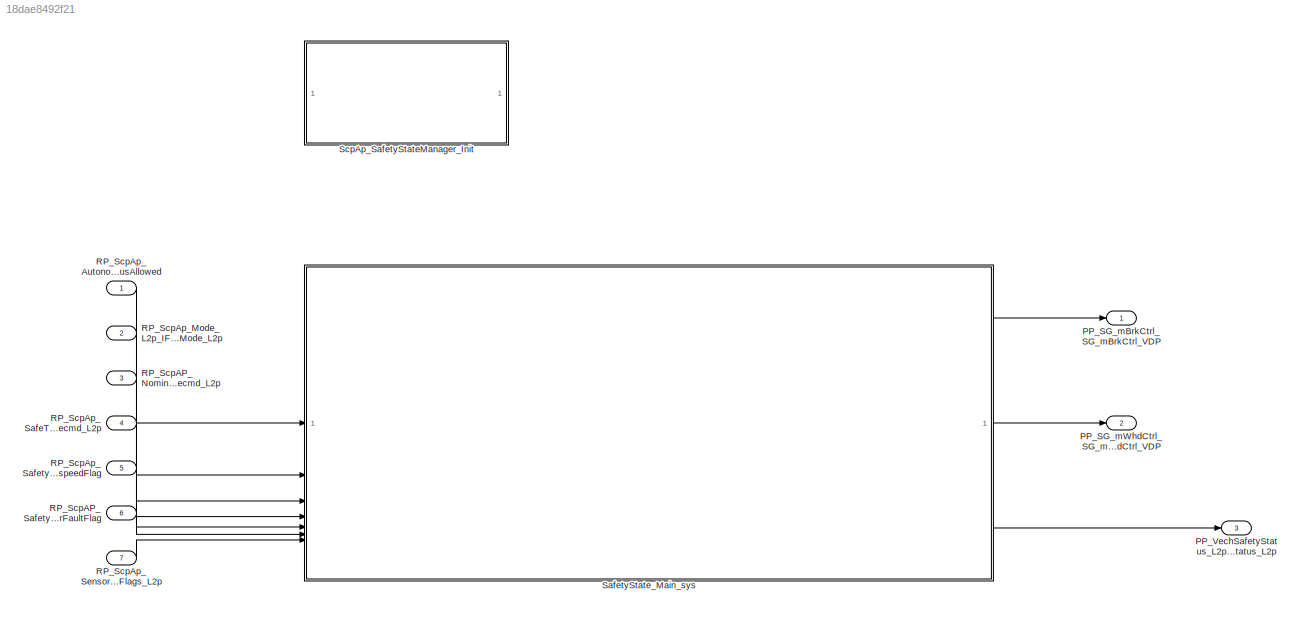
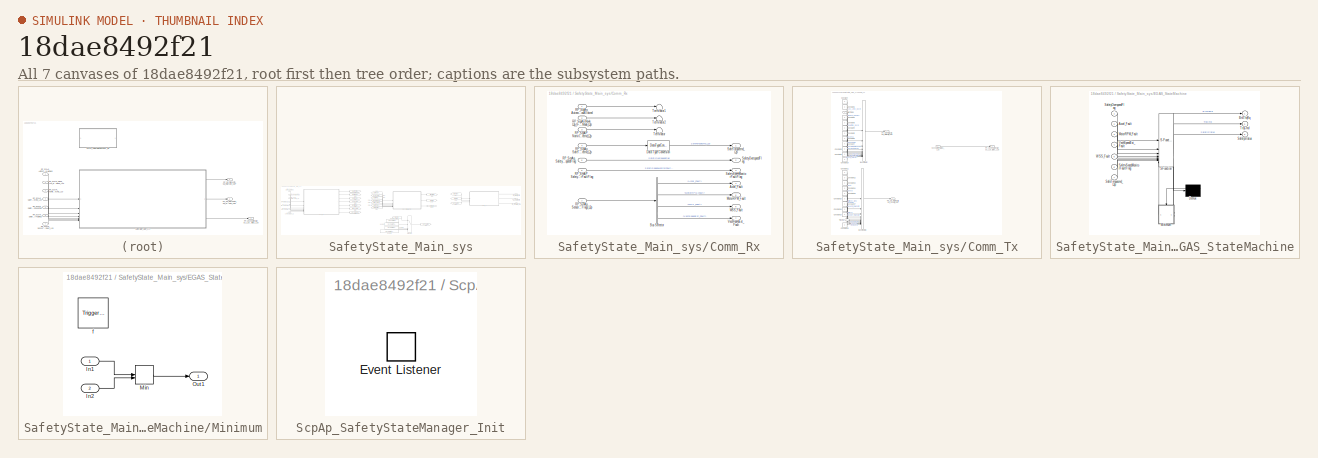
[diagram: thumbnail index - all 7 canvases of the model, root first then tree order]
MODEL slx_18dae8492f21
KIND model
CONFIG AbsTol = auto
CONFIG EnableMultiTasking = off
CONFIG FixedStep = 0.02
CONFIG MaxStep = auto
CONFIG MinStep = auto
CONFIG RelTol = 1e-3
CONFIG SampleTimeConstraint = Unconstrained
CONFIG SolverName = FixedStepDiscrete
CONFIG StartTime = 0.0
CONFIG StopTime = 0.18
BLOCK [Outport] PP_SG_mBrkCtrl_SG_mBrkCtrl_VDP
  BusOutputAsStruct = on
  OutDataTypeStr = Bus: SG_mBrkCtrl_IDT
  PortDimensions = 1
  SamplingMode = Sample based
BLOCK [Outport] PP_SG_mWhdCtrl_SG_mWhdCtrl_VDP
  BusOutputAsStruct = on
  OutDataTypeStr = Bus: SG_mWhdCtrl_IDT
  Port = 2
  PortDimensions = 1
  SamplingMode = Sample based
BLOCK [Outport] PP_VechSafetyStatus_L2p_IF_VechSafetyStatus_L2p
  OutDataTypeStr = Enum: VechSafetyStatus_L2p_IDT
  Port = 3
  PortDimensions = 1
  SamplingMode = Sample based
  SignalType = real
BLOCK [Inport] RP_ScpAP_NominalTorquecmd_L2p_IF_NominalTorquecmd_L2p
  OutDataTypeStr = int16
  Port = 3
  PortDimensions = 1
  SamplingMode = Sample based
  SignalType = real
BLOCK [Inport] RP_ScpAP_SafetySpeedMonitorFaultFlag_IF_SafetySpeedMonitorFaultFlag
  OutDataTypeStr = boolean
  Port = 6
  PortDimensions = 1
  SamplingMode = Sample based
  SignalType = real
BLOCK [Inport] RP_ScpAp_AutonomousAllowed_IF_AutonomousAllowed
  OutDataTypeStr = boolean
  PortDimensions = 1
  SamplingMode = Sample based
  SignalType = real
BLOCK [Inport] RP_ScpAp_Mode_L2p_IF_SafetyMode_L2p
  OutDataTypeStr = Enum: SafetyMode_L2p_IDT
  Port = 2
  PortDimensions = 1
  SamplingMode = Sample based
  SignalType = real
BLOCK [Inport] RP_ScpAp_SafeTorquecmd_L2p_IF_SafeTorquecmd_L2p
  OutDataTypeStr = int16
  Port = 4
  PortDimensions = 1
  SamplingMode = Sample based
  SignalType = real
BLOCK [Inport] RP_ScpAp_SafetyOverspeedFlag_IF_SafetyOverspeedFlag
  OutDataTypeStr = boolean
  Port = 5
  PortDimensions = 1
  SamplingMode = Sample based
  SignalType = real
BLOCK [Inport] RP_ScpAp_SensorValidityFlag_L2p_IF_SensorFaultFlags_L2p
  BusOutputAsStruct = on
  OutDataTypeStr = Bus: IF_SensorFaultFlgs_L2p_IDT
  Port = 7
  PortDimensions = 1
  SamplingMode = Sample based
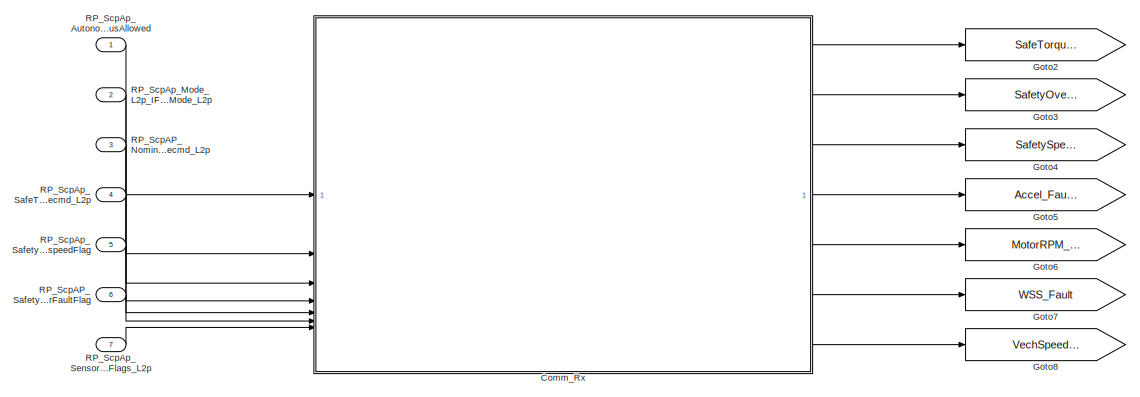
[diagram: SafetyState_Main_sys - part 1/3, top left region]
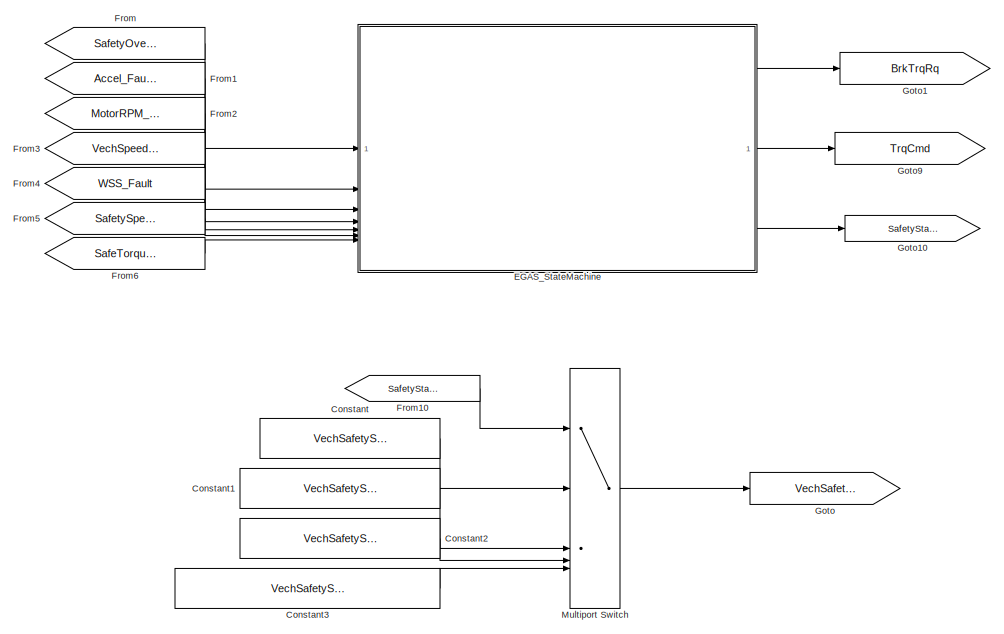
[diagram: SafetyState_Main_sys - part 2/3, center side, full height]
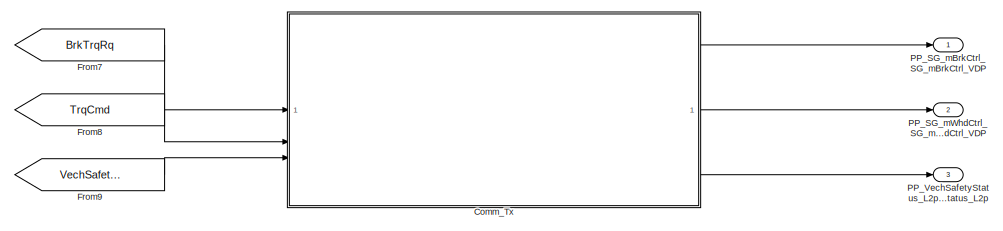
[diagram: SafetyState_Main_sys - part 3/3, top right region]
BLOCK [SubSystem] SafetyState_Main_sys
  SystemSampleTime = 0.02
  TreatAsAtomicUnit = on
BLOCK [SubSystem] SafetyState_Main_sys/Comm_Rx
  SystemSampleTime = 0.02
  TreatAsAtomicUnit = on
BLOCK [Outport] SafetyState_Main_sys/Comm_Rx/Accel_Fault
  Port = 4
BLOCK [BusSelector] SafetyState_Main_sys/Comm_Rx/Bus Selector
  OutputSignals = Accel_Fault,MotorRPM_Fault,WSS_Fault,VechSpeedEst_Fault
BLOCK [DataTypeConversion] SafetyState_Main_sys/Comm_Rx/Data Type Conversion
  OutDataTypeStr = single
  RndMeth = Floor
  SaturateOnIntegerOverflow = off
BLOCK [Outport] SafetyState_Main_sys/Comm_Rx/MotorRPM_Fault
  Port = 5
BLOCK [Inport] SafetyState_Main_sys/Comm_Rx/RP_ScpAP_NominalTorquecmd_L2p_IF_NominalTorquecmd_L2p
  Port = 3
BLOCK [Inport] SafetyState_Main_sys/Comm_Rx/RP_ScpAP_SafetySpeedMonitorFaultFlag_IF_SafetySpeedMonitorFaultFlag
  Port = 6
BLOCK [Inport] SafetyState_Main_sys/Comm_Rx/RP_ScpAp_AutonomousAllowed_IF_AutonomousAllowed
BLOCK [Inport] SafetyState_Main_sys/Comm_Rx/RP_ScpAp_Mode_L2p_IF_SafetyMode_L2p
  Port = 2
BLOCK [Inport] SafetyState_Main_sys/Comm_Rx/RP_ScpAp_SafeTorquecmd_L2p_IF_SafeTorquecmd_L2p
  Port = 4
BLOCK [Inport] SafetyState_Main_sys/Comm_Rx/RP_ScpAp_SafetyOverspeedFlag_IF_SafetyOverspeedFlag
  Port = 5
BLOCK [Inport] SafetyState_Main_sys/Comm_Rx/RP_ScpAp_SensorValidityFlag_L2p_IF_SensorFaultFlags_L2p
  OutDataTypeStr = Bus: IF_SensorFaultFlgs_L2p_IDT
  Port = 7
BLOCK [Outport] SafetyState_Main_sys/Comm_Rx/SafeTorquecmd_L2p
BLOCK [Outport] SafetyState_Main_sys/Comm_Rx/SafetyOverspeedFlag
  Port = 2
BLOCK [Outport] SafetyState_Main_sys/Comm_Rx/SafetySpeedMonitorFaultFlag
  Port = 3
BLOCK [Terminator] SafetyState_Main_sys/Comm_Rx/Terminator
BLOCK [Terminator] SafetyState_Main_sys/Comm_Rx/Terminator1
BLOCK [Terminator] SafetyState_Main_sys/Comm_Rx/Terminator2
BLOCK [Outport] SafetyState_Main_sys/Comm_Rx/VechSpeedEst_Fault
  Port = 7
BLOCK [Outport] SafetyState_Main_sys/Comm_Rx/WSS_Fault
  Port = 6
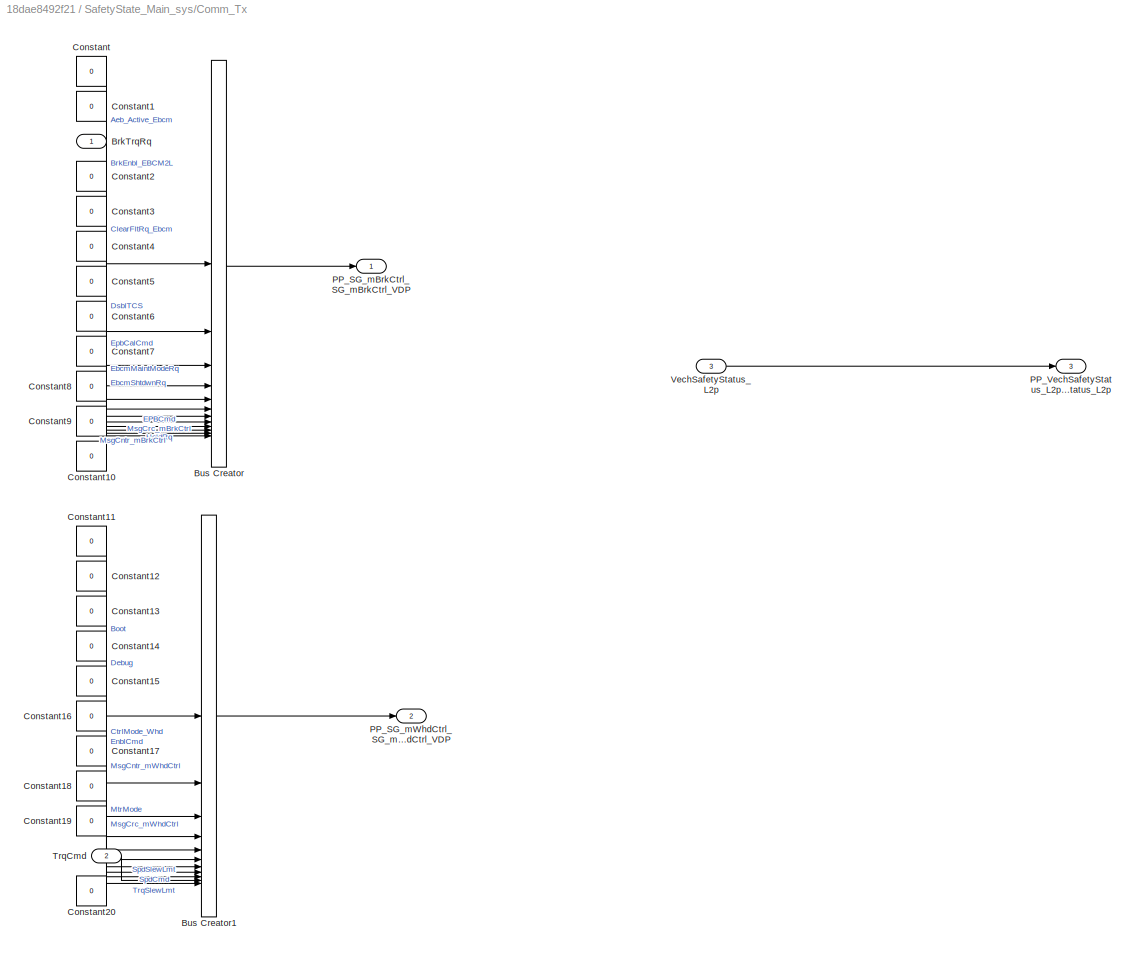
BLOCK [SubSystem] SafetyState_Main_sys/Comm_Tx
  SystemSampleTime = 0.02
  TreatAsAtomicUnit = on
BLOCK [Inport] SafetyState_Main_sys/Comm_Tx/BrkTrqRq
BLOCK [BusCreator] SafetyState_Main_sys/Comm_Tx/Bus Creator
  DisplayOption = bar
  InheritFromInputs = on
  Inputs = 12
  OutDataTypeStr = Bus: SG_mBrkCtrl_IDT
BLOCK [BusCreator] SafetyState_Main_sys/Comm_Tx/Bus Creator1
  DisplayOption = bar
  InheritFromInputs = on
  Inputs = 11
  OutDataTypeStr = Bus: SG_mWhdCtrl_IDT
BLOCK [Constant] SafetyState_Main_sys/Comm_Tx/Constant
  OutDataTypeStr = boolean
  Value = 0
BLOCK [Constant] SafetyState_Main_sys/Comm_Tx/Constant1
  OutDataTypeStr = boolean
  Value = 0
BLOCK [Constant] SafetyState_Main_sys/Comm_Tx/Constant10
  OutDataTypeStr = uint8
  Value = 0
BLOCK [Constant] SafetyState_Main_sys/Comm_Tx/Constant11
  OutDataTypeStr = boolean
  Value = 0
BLOCK [Constant] SafetyState_Main_sys/Comm_Tx/Constant12
  OutDataTypeStr = uint8
  Value = 0
BLOCK [Constant] SafetyState_Main_sys/Comm_Tx/Constant13
  OutDataTypeStr = boolean
  Value = 0
BLOCK [Constant] SafetyState_Main_sys/Comm_Tx/Constant14
  OutDataTypeStr = boolean
  Value = 0
BLOCK [Constant] SafetyState_Main_sys/Comm_Tx/Constant15
  OutDataTypeStr = uint8
  Value = 0
BLOCK [Constant] SafetyState_Main_sys/Comm_Tx/Constant16
  OutDataTypeStr = uint8
  Value = 0
BLOCK [Constant] SafetyState_Main_sys/Comm_Tx/Constant17
  OutDataTypeStr = uint8
  Value = 0
BLOCK [Constant] SafetyState_Main_sys/Comm_Tx/Constant18
  OutDataTypeStr = single
  Value = 0
BLOCK [Constant] SafetyState_Main_sys/Comm_Tx/Constant19
  OutDataTypeStr = single
  Value = 0
BLOCK [Constant] SafetyState_Main_sys/Comm_Tx/Constant2
  OutDataTypeStr = boolean
  Value = 0
BLOCK [Constant] SafetyState_Main_sys/Comm_Tx/Constant20
  OutDataTypeStr = single
  Value = 0
BLOCK [Constant] SafetyState_Main_sys/Comm_Tx/Constant3
  OutDataTypeStr = boolean
  Value = 0
BLOCK [Constant] SafetyState_Main_sys/Comm_Tx/Constant4
  OutDataTypeStr = boolean
  Value = 0
BLOCK [Constant] SafetyState_Main_sys/Comm_Tx/Constant5
  OutDataTypeStr = boolean
  Value = 0
BLOCK [Constant] SafetyState_Main_sys/Comm_Tx/Constant6
  OutDataTypeStr = boolean
  Value = 0
BLOCK [Constant] SafetyState_Main_sys/Comm_Tx/Constant7
  OutDataTypeStr = uint8
  Value = 0
BLOCK [Constant] SafetyState_Main_sys/Comm_Tx/Constant8
  OutDataTypeStr = boolean
  Value = 0
BLOCK [Constant] SafetyState_Main_sys/Comm_Tx/Constant9
  OutDataTypeStr = uint8
  Value = 0
BLOCK [Outport] SafetyState_Main_sys/Comm_Tx/PP_SG_mBrkCtrl_SG_mBrkCtrl_VDP
  OutDataTypeStr = Bus: SG_mBrkCtrl_IDT
BLOCK [Outport] SafetyState_Main_sys/Comm_Tx/PP_SG_mWhdCtrl_SG_mWhdCtrl_VDP
  OutDataTypeStr = Bus: SG_mWhdCtrl_IDT
  Port = 2
BLOCK [Outport] SafetyState_Main_sys/Comm_Tx/PP_VechSafetyStatus_L2p_IF_VechSafetyStatus_L2p
  OutDataTypeStr = Enum: VechSafetyStatus_L2p_IDT
  Port = 3
BLOCK [Inport] SafetyState_Main_sys/Comm_Tx/TrqCmd
  Port = 2
BLOCK [Inport] SafetyState_Main_sys/Comm_Tx/VechSafetyStatus_L2p
  OutDataTypeStr = Enum: VechSafetyStatus_L2p_IDT
  Port = 3
BLOCK [Constant] SafetyState_Main_sys/Constant
  Value = VechSafetyStatus_L2p_IDT.NORMAL
BLOCK [Constant] SafetyState_Main_sys/Constant1
  Value = VechSafetyStatus_L2p_IDT.DEGRADED
BLOCK [Constant] SafetyState_Main_sys/Constant2
  Value = VechSafetyStatus_L2p_IDT.FAULT_STOP
BLOCK [Constant] SafetyState_Main_sys/Constant3
  Value = VechSafetyStatus_L2p_IDT.OVERSPEED_HANDLING
BLOCK [SubSystem] SafetyState_Main_sys/EGAS_StateMachine
  ErrorFcn = Stateflow.Translate.translate
  PermitHierarchicalResolution = ExplicitOnly
  SFBlockType = Chart
  SystemSampleTime = 0.02
  TreatAsAtomicUnit = on
BLOCK [Demux] SafetyState_Main_sys/EGAS_StateMachine/ Demux 
  Outputs = 1
BLOCK [S-Function] SafetyState_Main_sys/EGAS_StateMachine/ SFunction 
  EnableBusSupport = off
  FunctionName = sf_sfun
  PortCounts = [8 6]
  SFcnIsStateOwnerBlock = off
  SFunctionDeploymentMode = off
  Tag = Stateflow S-Function 1
BLOCK [Inport] SafetyState_Main_sys/EGAS_StateMachine/Accel_Fault
  Port = 2
BLOCK [Outport] SafetyState_Main_sys/EGAS_StateMachine/BrkTrqRq
BLOCK [SubSystem] SafetyState_Main_sys/EGAS_StateMachine/Minimum
  PreDeleteFcn = Stateflow.SLINSF.SimulinkMan.removePreDeleteFcn
  UndoDeleteFcn = Stateflow.SLINSF.SimulinkMan.restorePreDeleteFcn
BLOCK [Inport] SafetyState_Main_sys/EGAS_StateMachine/Minimum/In1
  OutDataTypeStr = single
  PortDimensions = 1
  SignalType = real
  VarSizeSig = No
BLOCK [Inport] SafetyState_Main_sys/EGAS_StateMachine/Minimum/In2
  OutDataTypeStr = single
  Port = 2
  PortDimensions = 1
  SignalType = real
  VarSizeSig = No
BLOCK [MinMax] SafetyState_Main_sys/EGAS_StateMachine/Minimum/Min
  Inputs = 2
BLOCK [Outport] SafetyState_Main_sys/EGAS_StateMachine/Minimum/Out1
BLOCK [TriggerPort] SafetyState_Main_sys/EGAS_StateMachine/Minimum/f
  CopyFcn = Stateflow.SLINSF.SimulinkMan.removeBlockPreDeleteFcn
  PreDeleteFcn = Stateflow.SLINSF.SimulinkMan.unsafePredeleteFcn
  StatesWhenEnabling = held
  TriggerType = function-call
  VariantControl = (inherit)
BLOCK [Inport] SafetyState_Main_sys/EGAS_StateMachine/MotorRPM_Fault
  Port = 3
BLOCK [Inport] SafetyState_Main_sys/EGAS_StateMachine/SafeTorquecmd_L2p
  Port = 7
BLOCK [Inport] SafetyState_Main_sys/EGAS_StateMachine/SafetyOverspeedFlag
BLOCK [Inport] SafetyState_Main_sys/EGAS_StateMachine/SafetySpeedMonitorFaultFlag
  Port = 6
BLOCK [Outport] SafetyState_Main_sys/EGAS_StateMachine/SafetyStatus
  Port = 3
BLOCK [Outport] SafetyState_Main_sys/EGAS_StateMachine/TrqCmd
  Port = 2
BLOCK [Inport] SafetyState_Main_sys/EGAS_StateMachine/VechSpeedEst_Fault
  Port = 4
BLOCK [Inport] SafetyState_Main_sys/EGAS_StateMachine/WSS_Fault
  Port = 5
BLOCK [From] SafetyState_Main_sys/From
  GotoTag = SafetyOverspeedFlag
BLOCK [From] SafetyState_Main_sys/From1
  GotoTag = Accel_Fault
BLOCK [From] SafetyState_Main_sys/From10
  GotoTag = SafetyStatus
BLOCK [From] SafetyState_Main_sys/From2
  GotoTag = MotorRPM_Fault
BLOCK [From] SafetyState_Main_sys/From3
  GotoTag = VechSpeedEst_Fault
BLOCK [From] SafetyState_Main_sys/From4
  GotoTag = WSS_Fault
BLOCK [From] SafetyState_Main_sys/From5
  GotoTag = SafetySpeedMonitorFaultFlag
BLOCK [From] SafetyState_Main_sys/From6
  GotoTag = SafeTorquecmd_L2p
BLOCK [From] SafetyState_Main_sys/From7
  GotoTag = BrkTrqRq
BLOCK [From] SafetyState_Main_sys/From8
  GotoTag = TrqCmd
BLOCK [From] SafetyState_Main_sys/From9
  GotoTag = VechSafetyStatus_L2p
BLOCK [Goto] SafetyState_Main_sys/Goto
  GotoTag = VechSafetyStatus_L2p
BLOCK [Goto] SafetyState_Main_sys/Goto1
  GotoTag = BrkTrqRq
BLOCK [Goto] SafetyState_Main_sys/Goto10
  GotoTag = SafetyStatus
BLOCK [Goto] SafetyState_Main_sys/Goto2
  GotoTag = SafeTorquecmd_L2p
BLOCK [Goto] SafetyState_Main_sys/Goto3
  GotoTag = SafetyOverspeedFlag
BLOCK [Goto] SafetyState_Main_sys/Goto4
  GotoTag = SafetySpeedMonitorFaultFlag
BLOCK [Goto] SafetyState_Main_sys/Goto5
  GotoTag = Accel_Fault
BLOCK [Goto] SafetyState_Main_sys/Goto6
  GotoTag = MotorRPM_Fault
BLOCK [Goto] SafetyState_Main_sys/Goto7
  GotoTag = WSS_Fault
BLOCK [Goto] SafetyState_Main_sys/Goto8
  GotoTag = VechSpeedEst_Fault
BLOCK [Goto] SafetyState_Main_sys/Goto9
  GotoTag = TrqCmd
BLOCK [MultiPortSwitch] SafetyState_Main_sys/Multiport Switch
  DataPortOrder = Zero-based contiguous
  InputSameDT = off
  Inputs = 4
  SaturateOnIntegerOverflow = off
  zeroidx = on
BLOCK [Outport] SafetyState_Main_sys/PP_SG_mBrkCtrl_SG_mBrkCtrl_VDP
  OutDataTypeStr = Bus: SG_mBrkCtrl_IDT
BLOCK [Outport] SafetyState_Main_sys/PP_SG_mWhdCtrl_SG_mWhdCtrl_VDP
  OutDataTypeStr = Bus: SG_mWhdCtrl_IDT
  Port = 2
BLOCK [Outport] SafetyState_Main_sys/PP_VechSafetyStatus_L2p_IF_VechSafetyStatus_L2p
  OutDataTypeStr = Enum: VechSafetyStatus_L2p_IDT
  Port = 3
BLOCK [Inport] SafetyState_Main_sys/RP_ScpAP_NominalTorquecmd_L2p_IF_NominalTorquecmd_L2p
  Port = 3
BLOCK [Inport] SafetyState_Main_sys/RP_ScpAP_SafetySpeedMonitorFaultFlag_IF_SafetySpeedMonitorFaultFlag
  Port = 6
BLOCK [Inport] SafetyState_Main_sys/RP_ScpAp_AutonomousAllowed_IF_AutonomousAllowed
BLOCK [Inport] SafetyState_Main_sys/RP_ScpAp_Mode_L2p_IF_SafetyMode_L2p
  Port = 2
BLOCK [Inport] SafetyState_Main_sys/RP_ScpAp_SafeTorquecmd_L2p_IF_SafeTorquecmd_L2p
  Port = 4
BLOCK [Inport] SafetyState_Main_sys/RP_ScpAp_SafetyOverspeedFlag_IF_SafetyOverspeedFlag
  Port = 5
BLOCK [Inport] SafetyState_Main_sys/RP_ScpAp_SensorValidityFlag_L2p_IF_SensorFaultFlags_L2p
  OutDataTypeStr = Bus: IF_SensorFaultFlgs_L2p_IDT
  Port = 7
BLOCK [SubSystem] ScpAp_SafetyStateManager_Init
BLOCK [EventListener] ScpAp_SafetyStateManager_Init/Event Listener
  EventName = reset
LINE RP_ScpAP_NominalTorquecmd_L2p_IF_NominalTorquecmd_L2p:1 -> SafetyState_Main_sys:3
LINE RP_ScpAP_SafetySpeedMonitorFaultFlag_IF_SafetySpeedMonitorFaultFlag:1 -> SafetyState_Main_sys:6
LINE RP_ScpAp_AutonomousAllowed_IF_AutonomousAllowed:1 -> SafetyState_Main_sys:1
LINE RP_ScpAp_Mode_L2p_IF_SafetyMode_L2p:1 -> SafetyState_Main_sys:2
LINE RP_ScpAp_SafeTorquecmd_L2p_IF_SafeTorquecmd_L2p:1 -> SafetyState_Main_sys:4
LINE RP_ScpAp_SafetyOverspeedFlag_IF_SafetyOverspeedFlag:1 -> SafetyState_Main_sys:5
LINE RP_ScpAp_SensorValidityFlag_L2p_IF_SensorFaultFlags_L2p:1 -> SafetyState_Main_sys:7
LINE SafetyState_Main_sys/Comm_Rx/Bus Selector:1 -> SafetyState_Main_sys/Comm_Rx/Accel_Fault:1
LINE SafetyState_Main_sys/Comm_Rx/Bus Selector:2 -> SafetyState_Main_sys/Comm_Rx/MotorRPM_Fault:1
LINE SafetyState_Main_sys/Comm_Rx/Bus Selector:3 -> SafetyState_Main_sys/Comm_Rx/WSS_Fault:1
LINE SafetyState_Main_sys/Comm_Rx/Bus Selector:4 -> SafetyState_Main_sys/Comm_Rx/VechSpeedEst_Fault:1
LINE SafetyState_Main_sys/Comm_Rx/Data Type Conversion:1 -> SafetyState_Main_sys/Comm_Rx/SafeTorquecmd_L2p:1
LINE SafetyState_Main_sys/Comm_Rx/RP_ScpAP_NominalTorquecmd_L2p_IF_NominalTorquecmd_L2p:1 -> SafetyState_Main_sys/Comm_Rx/Terminator:1
LINE SafetyState_Main_sys/Comm_Rx/RP_ScpAP_SafetySpeedMonitorFaultFlag_IF_SafetySpeedMonitorFaultFlag:1 -> SafetyState_Main_sys/Comm_Rx/SafetySpeedMonitorFaultFlag:1
LINE SafetyState_Main_sys/Comm_Rx/RP_ScpAp_AutonomousAllowed_IF_AutonomousAllowed:1 -> SafetyState_Main_sys/Comm_Rx/Terminator1:1
LINE SafetyState_Main_sys/Comm_Rx/RP_ScpAp_Mode_L2p_IF_SafetyMode_L2p:1 -> SafetyState_Main_sys/Comm_Rx/Terminator2:1
LINE SafetyState_Main_sys/Comm_Rx/RP_ScpAp_SafeTorquecmd_L2p_IF_SafeTorquecmd_L2p:1 -> SafetyState_Main_sys/Comm_Rx/Data Type Conversion:1
LINE SafetyState_Main_sys/Comm_Rx/RP_ScpAp_SafetyOverspeedFlag_IF_SafetyOverspeedFlag:1 -> SafetyState_Main_sys/Comm_Rx/SafetyOverspeedFlag:1
LINE SafetyState_Main_sys/Comm_Rx/RP_ScpAp_SensorValidityFlag_L2p_IF_SensorFaultFlags_L2p:1 -> SafetyState_Main_sys/Comm_Rx/Bus Selector:1
LINE SafetyState_Main_sys/Comm_Rx:1 -> SafetyState_Main_sys/Goto2:1
LINE SafetyState_Main_sys/Comm_Rx:2 -> SafetyState_Main_sys/Goto3:1
LINE SafetyState_Main_sys/Comm_Rx:3 -> SafetyState_Main_sys/Goto4:1
LINE SafetyState_Main_sys/Comm_Rx:4 -> SafetyState_Main_sys/Goto5:1
LINE SafetyState_Main_sys/Comm_Rx:5 -> SafetyState_Main_sys/Goto6:1
LINE SafetyState_Main_sys/Comm_Rx:6 -> SafetyState_Main_sys/Goto7:1
LINE SafetyState_Main_sys/Comm_Rx:7 -> SafetyState_Main_sys/Goto8:1
LINE SafetyState_Main_sys/Comm_Tx/BrkTrqRq:1 -> SafetyState_Main_sys/Comm_Tx/Bus Creator:3
LINE SafetyState_Main_sys/Comm_Tx/Bus Creator1:1 -> SafetyState_Main_sys/Comm_Tx/PP_SG_mWhdCtrl_SG_mWhdCtrl_VDP:1
LINE SafetyState_Main_sys/Comm_Tx/Bus Creator:1 -> SafetyState_Main_sys/Comm_Tx/PP_SG_mBrkCtrl_SG_mBrkCtrl_VDP:1
LINE SafetyState_Main_sys/Comm_Tx/Constant10:1 -> SafetyState_Main_sys/Comm_Tx/Bus Creator:12
LINE SafetyState_Main_sys/Comm_Tx/Constant11:1 -> SafetyState_Main_sys/Comm_Tx/Bus Creator1:1
LINE SafetyState_Main_sys/Comm_Tx/Constant12:1 -> SafetyState_Main_sys/Comm_Tx/Bus Creator1:2
LINE SafetyState_Main_sys/Comm_Tx/Constant13:1 -> SafetyState_Main_sys/Comm_Tx/Bus Creator1:3
LINE SafetyState_Main_sys/Comm_Tx/Constant14:1 -> SafetyState_Main_sys/Comm_Tx/Bus Creator1:4
LINE SafetyState_Main_sys/Comm_Tx/Constant15:1 -> SafetyState_Main_sys/Comm_Tx/Bus Creator1:5
LINE SafetyState_Main_sys/Comm_Tx/Constant16:1 -> SafetyState_Main_sys/Comm_Tx/Bus Creator1:6
LINE SafetyState_Main_sys/Comm_Tx/Constant17:1 -> SafetyState_Main_sys/Comm_Tx/Bus Creator1:7
LINE SafetyState_Main_sys/Comm_Tx/Constant18:1 -> SafetyState_Main_sys/Comm_Tx/Bus Creator1:8
LINE SafetyState_Main_sys/Comm_Tx/Constant19:1 -> SafetyState_Main_sys/Comm_Tx/Bus Creator1:9
LINE SafetyState_Main_sys/Comm_Tx/Constant1:1 -> SafetyState_Main_sys/Comm_Tx/Bus Creator:2
LINE SafetyState_Main_sys/Comm_Tx/Constant20:1 -> SafetyState_Main_sys/Comm_Tx/Bus Creator1:11
LINE SafetyState_Main_sys/Comm_Tx/Constant2:1 -> SafetyState_Main_sys/Comm_Tx/Bus Creator:4
LINE SafetyState_Main_sys/Comm_Tx/Constant3:1 -> SafetyState_Main_sys/Comm_Tx/Bus Creator:5
LINE SafetyState_Main_sys/Comm_Tx/Constant4:1 -> SafetyState_Main_sys/Comm_Tx/Bus Creator:6
LINE SafetyState_Main_sys/Comm_Tx/Constant5:1 -> SafetyState_Main_sys/Comm_Tx/Bus Creator:7
LINE SafetyState_Main_sys/Comm_Tx/Constant6:1 -> SafetyState_Main_sys/Comm_Tx/Bus Creator:8
LINE SafetyState_Main_sys/Comm_Tx/Constant7:1 -> SafetyState_Main_sys/Comm_Tx/Bus Creator:9
LINE SafetyState_Main_sys/Comm_Tx/Constant8:1 -> SafetyState_Main_sys/Comm_Tx/Bus Creator:10
LINE SafetyState_Main_sys/Comm_Tx/Constant9:1 -> SafetyState_Main_sys/Comm_Tx/Bus Creator:11
LINE SafetyState_Main_sys/Comm_Tx/Constant:1 -> SafetyState_Main_sys/Comm_Tx/Bus Creator:1
LINE SafetyState_Main_sys/Comm_Tx/TrqCmd:1 -> SafetyState_Main_sys/Comm_Tx/Bus Creator1:10
LINE SafetyState_Main_sys/Comm_Tx/VechSafetyStatus_L2p:1 -> SafetyState_Main_sys/Comm_Tx/PP_VechSafetyStatus_L2p_IF_VechSafetyStatus_L2p:1
LINE SafetyState_Main_sys/Comm_Tx:1 -> SafetyState_Main_sys/PP_SG_mBrkCtrl_SG_mBrkCtrl_VDP:1
LINE SafetyState_Main_sys/Comm_Tx:2 -> SafetyState_Main_sys/PP_SG_mWhdCtrl_SG_mWhdCtrl_VDP:1
LINE SafetyState_Main_sys/Comm_Tx:3 -> SafetyState_Main_sys/PP_VechSafetyStatus_L2p_IF_VechSafetyStatus_L2p:1
LINE SafetyState_Main_sys/Constant1:1 -> SafetyState_Main_sys/Multiport Switch:3
LINE SafetyState_Main_sys/Constant2:1 -> SafetyState_Main_sys/Multiport Switch:4
LINE SafetyState_Main_sys/Constant3:1 -> SafetyState_Main_sys/Multiport Switch:5
LINE SafetyState_Main_sys/Constant:1 -> SafetyState_Main_sys/Multiport Switch:2
LINE SafetyState_Main_sys/EGAS_StateMachine:1 -> SafetyState_Main_sys/Goto1:1
LINE SafetyState_Main_sys/EGAS_StateMachine:2 -> SafetyState_Main_sys/Goto9:1
LINE SafetyState_Main_sys/EGAS_StateMachine:3 -> SafetyState_Main_sys/Goto10:1
LINE SafetyState_Main_sys/From10:1 -> SafetyState_Main_sys/Multiport Switch:1
LINE SafetyState_Main_sys/From1:1 -> SafetyState_Main_sys/EGAS_StateMachine:2
LINE SafetyState_Main_sys/From2:1 -> SafetyState_Main_sys/EGAS_StateMachine:3
LINE SafetyState_Main_sys/From3:1 -> SafetyState_Main_sys/EGAS_StateMachine:4
LINE SafetyState_Main_sys/From4:1 -> SafetyState_Main_sys/EGAS_StateMachine:5
LINE SafetyState_Main_sys/From5:1 -> SafetyState_Main_sys/EGAS_StateMachine:6
LINE SafetyState_Main_sys/From6:1 -> SafetyState_Main_sys/EGAS_StateMachine:7
LINE SafetyState_Main_sys/From7:1 -> SafetyState_Main_sys/Comm_Tx:1
LINE SafetyState_Main_sys/From8:1 -> SafetyState_Main_sys/Comm_Tx:2
LINE SafetyState_Main_sys/From9:1 -> SafetyState_Main_sys/Comm_Tx:3
LINE SafetyState_Main_sys/From:1 -> SafetyState_Main_sys/EGAS_StateMachine:1
LINE SafetyState_Main_sys/Multiport Switch:1 -> SafetyState_Main_sys/Goto:1
LINE SafetyState_Main_sys/RP_ScpAP_NominalTorquecmd_L2p_IF_NominalTorquecmd_L2p:1 -> SafetyState_Main_sys/Comm_Rx:3
LINE SafetyState_Main_sys/RP_ScpAP_SafetySpeedMonitorFaultFlag_IF_SafetySpeedMonitorFaultFlag:1 -> SafetyState_Main_sys/Comm_Rx:6
LINE SafetyState_Main_sys/RP_ScpAp_AutonomousAllowed_IF_AutonomousAllowed:1 -> SafetyState_Main_sys/Comm_Rx:1
LINE SafetyState_Main_sys/RP_ScpAp_Mode_L2p_IF_SafetyMode_L2p:1 -> SafetyState_Main_sys/Comm_Rx:2
LINE SafetyState_Main_sys/RP_ScpAp_SafeTorquecmd_L2p_IF_SafeTorquecmd_L2p:1 -> SafetyState_Main_sys/Comm_Rx:4
LINE SafetyState_Main_sys/RP_ScpAp_SafetyOverspeedFlag_IF_SafetyOverspeedFlag:1 -> SafetyState_Main_sys/Comm_Rx:5
LINE SafetyState_Main_sys/RP_ScpAp_SensorValidityFlag_L2p_IF_SensorFaultFlags_L2p:1 -> SafetyState_Main_sys/Comm_Rx:7
LINE SafetyState_Main_sys:1 -> PP_SG_mBrkCtrl_SG_mBrkCtrl_VDP:1
LINE SafetyState_Main_sys:2 -> PP_SG_mWhdCtrl_SG_mWhdCtrl_VDP:1
LINE SafetyState_Main_sys:3 -> PP_VechSafetyStatus_L2p_IF_VechSafetyStatus_L2p:1
CHART SafetyState_Main_sys/EGAS_StateMachine states=5 transitions=7
  STATE_LABEL 'Normal\nen:\nSafetyStatus=0;\nBrkTrqRq=0;\nTrqCmd=SafeTorquecmd_L2p;\ndu:\nSafetyStatus=0;\nBrkTrqRq=0;\nTrqCmd=SafeTorquecmd_L2p;\n'
  STATE_LABEL 'OverSpeed_Handling\nen:\nTrqCmd=Minimum(SafeTorquecmd_L2p,Torque_Decel_Limit);\nBrkTrqRq=Brake_Decel_Level;\nSafetyStatus=3;\ndu:\nTrqCmd=Minimum(SafeTorquecmd_L2p,Torque_Decel_Limit);\nBrkTrqRq=Brake_Decel_Level;\nSafetyStatus=3;'
  STATE_LABEL 'Out1 = Minimum(In1,In2)'
  STATE_LABEL 'Degrade\nen:\nTrqCmd=0;\nBrkTrqRq=Brake_Limp;\nSafetyStatus=1;\ndu:\nTrqCmd=0;\nBrkTrqRq=Brake_Limp;\nSafetyStatus=1;\n'
  STATE_LABEL 'Energency_Stop\nen:\nTrqCmd=0;\nBrkTrqRq=Brake_Max_Safe;\nSafetyStatus=2;\ndu:\nTrqCmd=0;\nBrkTrqRq=Brake_Max_Safe;\nSafetyStatus=2;'
CHART  states=0 transitions=0
